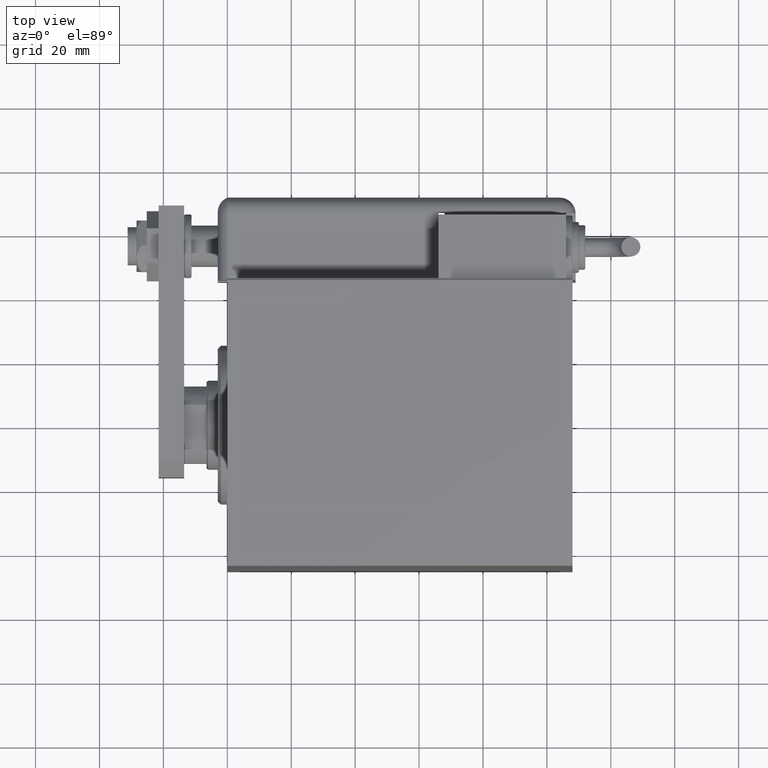
[diagram: clean part render]
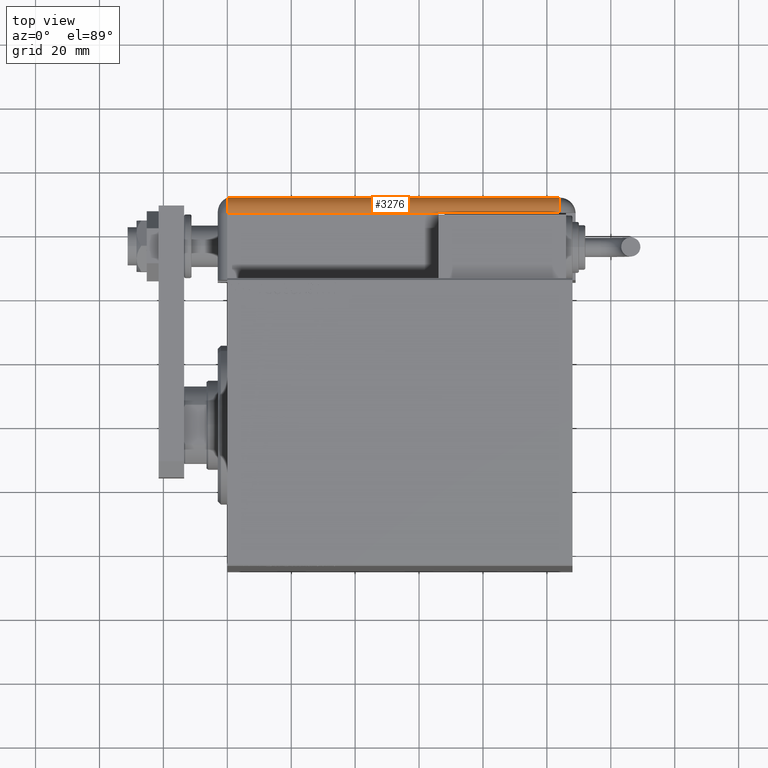
[diagram: same view with one face highlighted and labeled with its STEP entity id]
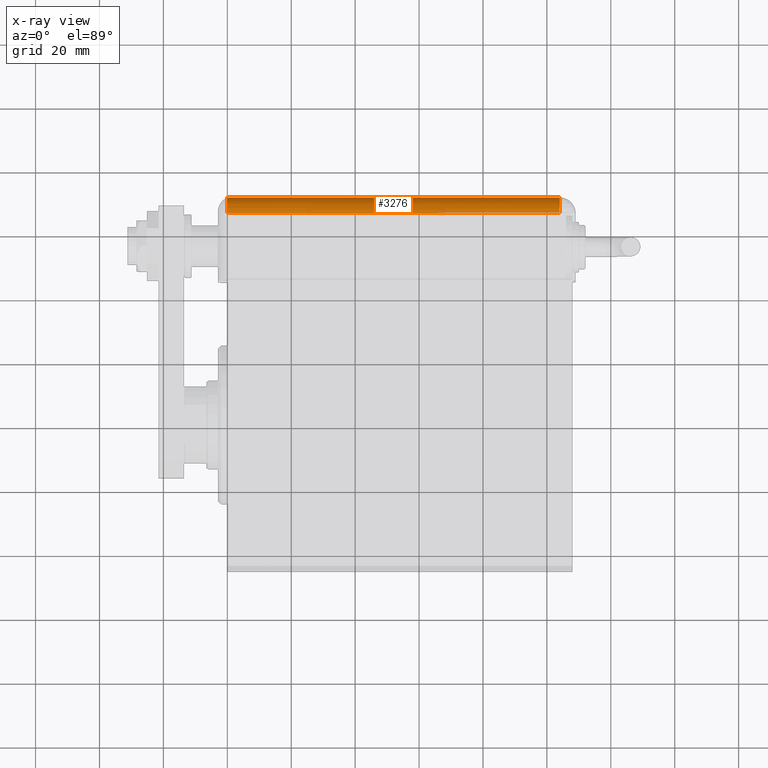
[diagram: x-ray of the same camera — body ghosted, the highlighted face saturated]
A machine part, top view. The second image highlights one B-rep face of the part: STEP entity #3276.
The next image is the same camera in x-ray: the body ghosted, the highlighted face saturated — about 0% of this face is hidden behind the body in this view.
In plain terms, the highlighted cylindrical surface (edge-blend (fillet) strip) has radius 5 mm, axis along (1, -0, -0).
Its self-contained STEP definition (entity closure, byte-faithful):
#118 = DIRECTION ( 'NONE',  ( -1.000000000000000000, 0.000000000000000000, 0.000000000000000000 ) ) ;
#1695 = CIRCLE ( 'NONE', #19006, 5.000000000000000888 ) ;
#2722 = AXIS2_PLACEMENT_3D ( 'NONE', #31176, #13389, #118 ) ;
#3276 = ADVANCED_FACE ( 'NONE', ( #22417 ), #27249, .T. ) ;
#4521 = CARTESIAN_POINT ( 'NONE',  ( 28.99999999999999645, 20.79999999999998295, 43.00000000000000000 ) ) ;
#7258 = CARTESIAN_POINT ( 'NONE',  ( 28.99599839871871154, 21.00000000000000000, 5.000000000000004441 ) ) ;
#7630 = DIRECTION ( 'NONE',  ( -1.000000000000000000, 0.000000000000000000, 0.000000000000000000 ) ) ;
#8798 = VERTEX_POINT ( 'NONE', #4521 ) ;
#10149 = VECTOR ( 'NONE', #49754, 1000.000000000000000 ) ;
#13001 = EDGE_CURVE ( 'NONE', #27122, #29046, #22705, .T. ) ;
#13389 = DIRECTION ( 'NONE',  ( 0.000000000000000000, 0.000000000000000000, -1.000000000000000000 ) ) ;
#13733 = CIRCLE ( 'NONE', #41635, 5.000000000000000888 ) ;
#14528 = CARTESIAN_POINT ( 'NONE',  ( 23.99999999999999289, 25.79999999999998295, 5.000000000000004441 ) ) ;
#14589 = CARTESIAN_POINT ( 'NONE',  ( 23.99999999999999289, 25.79999999999998295, 109.0000000000000000 ) ) ;
#16331 = ORIENTED_EDGE ( 'NONE', *, *, #42761, .F. ) ;
#16949 = LINE ( 'NONE', #17841, #53736 ) ;
#17841 = CARTESIAN_POINT ( 'NONE',  ( 28.99599839871871154, 20.99999999999998224, 109.0000000000000000 ) ) ;
#18236 = EDGE_CURVE ( 'NONE', #20650, #27122, #13733, .T. ) ;
#18797 = DIRECTION ( 'NONE',  ( 1.000000000000000000, -6.383782391594648845E-14, 0.000000000000000000 ) ) ;
#19000 = CIRCLE ( 'NONE', #54609, 5.000000000000000888 ) ;
#19006 = AXIS2_PLACEMENT_3D ( 'NONE', #42887, #42286, #18797 ) ;
#20502 = CARTESIAN_POINT ( 'NONE',  ( 23.99999999999999289, 20.79999999999998295, 5.000000000000004441 ) ) ;
#20650 = VERTEX_POINT ( 'NONE', #26309 ) ;
#21237 = CARTESIAN_POINT ( 'NONE',  ( 28.99599839871871154, 20.99999999999999289, 43.00000000000000000 ) ) ;
#22417 = FACE_OUTER_BOUND ( 'NONE', #41987, .T. ) ;
#22705 = LINE ( 'NONE', #37666, #57990 ) ;
#25322 = DIRECTION ( 'NONE',  ( -1.000000000000000000, 0.000000000000000000, 0.000000000000000000 ) ) ;
#26309 = CARTESIAN_POINT ( 'NONE',  ( 28.99999999999999645, 20.79999999999998295, 109.0000000000000000 ) ) ;
#26560 = CARTESIAN_POINT ( 'NONE',  ( 28.99999999999999645, 20.79999999999998295, 109.0000000000000000 ) ) ;
#27122 = VERTEX_POINT ( 'NONE', #14589 ) ;
#27249 = CYLINDRICAL_SURFACE ( 'NONE', #2722, 5.000000000000000888 ) ;
#29046 = VERTEX_POINT ( 'NONE', #14528 ) ;
#30510 = CARTESIAN_POINT ( 'NONE',  ( 23.99999999999999289, 20.79999999999998295, 109.0000000000000000 ) ) ;
#31176 = CARTESIAN_POINT ( 'NONE',  ( 23.99999999999999289, 20.79999999999998295, 109.0000000000000000 ) ) ;
#31509 = EDGE_CURVE ( 'NONE', #31578, #29046, #19000, .T. ) ;
#31578 = VERTEX_POINT ( 'NONE', #7258 ) ;
#35294 = LINE ( 'NONE', #26560, #10149 ) ;
#37666 = CARTESIAN_POINT ( 'NONE',  ( 23.99999999999999289, 25.79999999999998295, 109.0000000000000000 ) ) ;
#38357 = EDGE_CURVE ( 'NONE', #8798, #20650, #35294, .T. ) ;
#39891 = ORIENTED_EDGE ( 'NONE', *, *, #18236, .F. ) ;
#41635 = AXIS2_PLACEMENT_3D ( 'NONE', #30510, #44068, #7630 ) ;
#41987 = EDGE_LOOP ( 'NONE', ( #16331, #51899, #52716, #54468, #39891, #57095 ) ) ;
#42286 = DIRECTION ( 'NONE',  ( -0.000000000000000000, 0.000000000000000000, -1.000000000000000000 ) ) ;
#42480 = DIRECTION ( 'NONE',  ( 0.000000000000000000, 0.000000000000000000, -1.000000000000000000 ) ) ;
#42517 = VERTEX_POINT ( 'NONE', #21237 ) ;
#42761 = EDGE_CURVE ( 'NONE', #42517, #8798, #1695, .T. ) ;
#42887 = CARTESIAN_POINT ( 'NONE',  ( 23.99999999999999289, 20.79999999999998295, 43.00000000000000000 ) ) ;
#44068 = DIRECTION ( 'NONE',  ( -0.000000000000000000, -0.000000000000000000, 1.000000000000000000 ) ) ;
#48590 = DIRECTION ( 'NONE',  ( -0.000000000000000000, -0.000000000000000000, 1.000000000000000000 ) ) ;
#48968 = EDGE_CURVE ( 'NONE', #31578, #42517, #16949, .T. ) ;
#49754 = DIRECTION ( 'NONE',  ( -0.000000000000000000, -0.000000000000000000, 1.000000000000000000 ) ) ;
#51899 = ORIENTED_EDGE ( 'NONE', *, *, #48968, .F. ) ;
#52160 = DIRECTION ( 'NONE',  ( -0.000000000000000000, -0.000000000000000000, 1.000000000000000000 ) ) ;
#52716 = ORIENTED_EDGE ( 'NONE', *, *, #31509, .T. ) ;
#53736 = VECTOR ( 'NONE', #48590, 1000.000000000000000 ) ;
#54468 = ORIENTED_EDGE ( 'NONE', *, *, #13001, .F. ) ;
#54609 = AXIS2_PLACEMENT_3D ( 'NONE', #20502, #52160, #25322 ) ;
#57095 = ORIENTED_EDGE ( 'NONE', *, *, #38357, .F. ) ;
#57990 = VECTOR ( 'NONE', #42480, 1000.000000000000000 ) ;